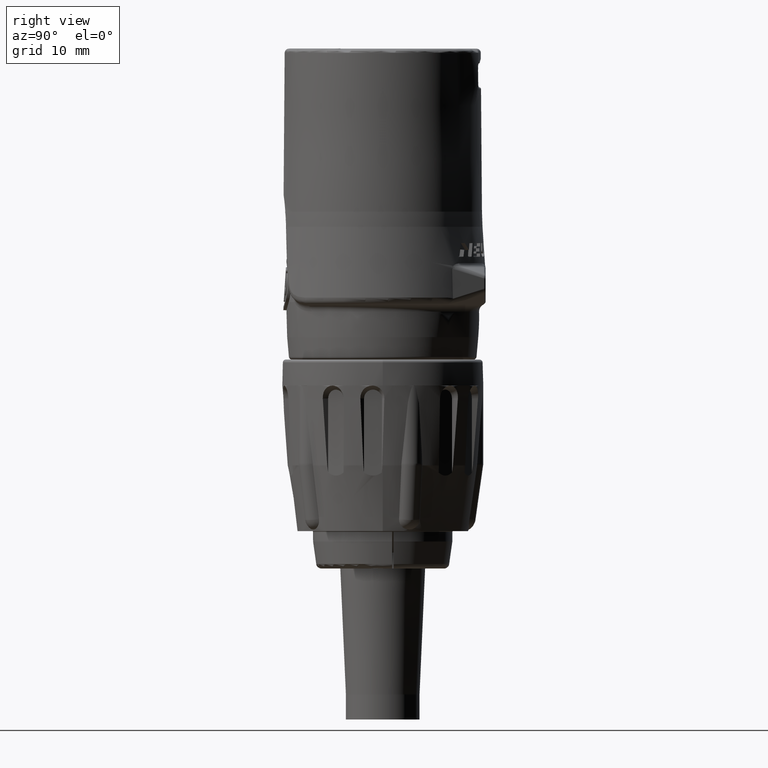
[diagram: clean part render]
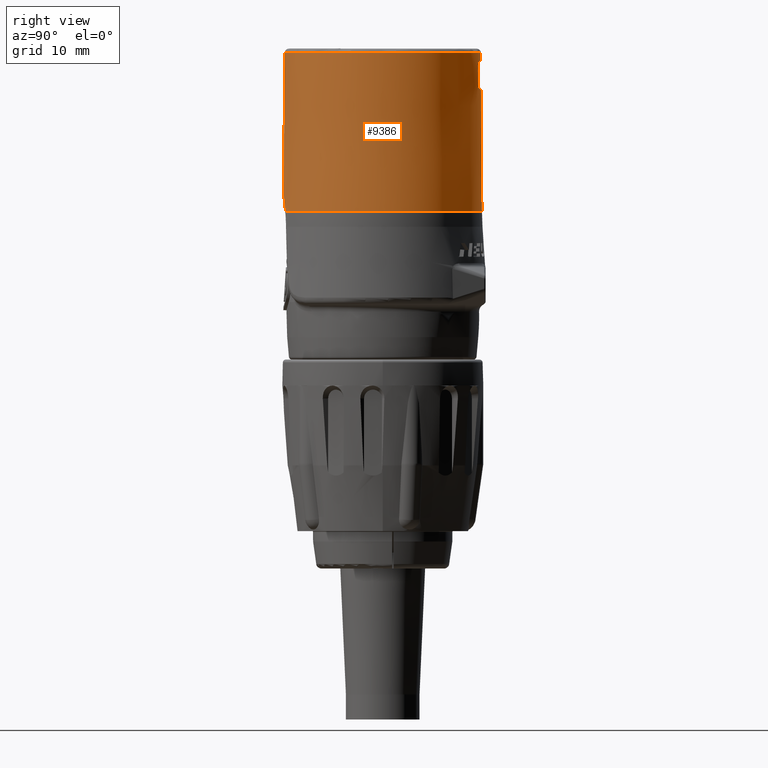
[diagram: same view with one face highlighted and labeled with its STEP entity id]
A machine part, right view. The second image highlights one B-rep face of the part: STEP entity #9386.
In plain terms, the highlighted conical surface has half-angle 0.437 deg.
Its self-contained STEP definition (entity closure, byte-faithful):
#1=CARTESIAN_POINT('',(1.893477147774E0,-9.354737866333E0,-7.708121573562E-1));
#2=CARTESIAN_POINT('',(1.840010879332E0,-9.364691513005E0,-6.589383458573E-1));
#3=CARTESIAN_POINT('',(1.732613962791E0,-9.383840837252E0,-4.489987730211E-1));
#4=CARTESIAN_POINT('',(1.571763490272E0,-9.410021084290E0,-1.771849352532E-1));
#5=CARTESIAN_POINT('',(1.408591526255E0,-9.434034154197E0,5.764743483160E-2));
#6=CARTESIAN_POINT('',(1.241454190438E0,-9.455958800716E0,2.585589270765E-1));
#7=CARTESIAN_POINT('',(1.070445893994E0,-9.475565907758E0,4.268960512900E-1));
#8=CARTESIAN_POINT('',(8.980821717949E-1,-9.492407262663E0,5.628282518351E-1));
#9=CARTESIAN_POINT('',(7.278155660031E-1,-9.506154446612E0,6.680935177956E-1));
#10=CARTESIAN_POINT('',(5.611889864861E-1,-9.516817402424E0,7.463196689173E-1));
#11=CARTESIAN_POINT('',(3.967669897794E-1,-9.524690844597E0,8.024715669754E-1));
#12=CARTESIAN_POINT('',(2.156300855397E-1,-9.530377630007E0,8.421601616838E-1));
#13=CARTESIAN_POINT('',(7.473755445788E-2,-9.532057701226E0,8.537458661578E-1));
#14=CARTESIAN_POINT('',(-4.543181709230E-9,-9.532059863128E0,
8.537459576222E-1));
#16=CARTESIAN_POINT('',(0.E0,0.E0,1.450304869193E1));
#17=DIRECTION('',(0.E0,0.E0,1.E0));
#18=DIRECTION('',(0.E0,-1.E0,0.E0));
#19=AXIS2_PLACEMENT_3D('',#16,#17,#18);
#21=CARTESIAN_POINT('',(1.094235813071E-12,9.432344260641E0,1.393643300390E1));
#22=CARTESIAN_POINT('',(4.748554453155E-1,9.432344260641E0,1.393643300390E1));
#23=CARTESIAN_POINT('',(9.175376978175E-1,9.398135068145E0,1.381125231873E1));
#24=CARTESIAN_POINT('',(1.337398621795E0,9.339660356680E0,1.359727753848E1));
#26=CARTESIAN_POINT('',(1.358752026420E0,9.336649209608E0,1.358728264868E1));
#27=CARTESIAN_POINT('',(1.356310429132E0,9.336996434243E0,1.358833406538E1));
#28=CARTESIAN_POINT('',(1.351484329412E0,9.337688200019E0,1.359050058380E1));
#29=CARTESIAN_POINT('',(1.344350560816E0,9.338689131461E0,1.359380660247E1));
#30=CARTESIAN_POINT('',(1.339698981698E0,9.339339981827E0,1.359610520027E1));
#31=CARTESIAN_POINT('',(1.337398621795E0,9.339660356680E0,1.359727753848E1));
#33=CARTESIAN_POINT('',(2.247621928830E0,9.167582280119E0,1.305152433291E1));
#34=CARTESIAN_POINT('',(2.247614471101E0,9.167186503668E0,1.310159044353E1));
#35=CARTESIAN_POINT('',(2.235230167038E0,9.169483167388E0,1.319871867844E1));
#36=CARTESIAN_POINT('',(2.180025360617E0,9.181738205964E0,1.333902573669E1));
#37=CARTESIAN_POINT('',(2.089759613155E0,9.201848848812E0,1.346306331239E1));
#38=CARTESIAN_POINT('',(1.968565002113E0,9.227886842445E0,1.356264976454E1));
#39=CARTESIAN_POINT('',(1.823732007161E0,9.257179366898E0,1.362936076083E1));
#40=CARTESIAN_POINT('',(1.665764537580E0,9.286734255271E0,1.365761927874E1));
#41=CARTESIAN_POINT('',(1.505260258780E0,9.314157654993E0,1.364474435279E1));
#42=CARTESIAN_POINT('',(1.406656566328E0,9.329498929256E0,1.361092436998E1));
#43=CARTESIAN_POINT('',(1.358752026420E0,9.336649209608E0,1.358728264868E1));
#45=DIRECTION('',(3.971374300695E-5,-7.854830983089E-3,9.999691495506E-1));
#46=VECTOR('',#45,1.450044756993E0);
#47=CARTESIAN_POINT('',(2.247564342126E0,9.178972136604E0,1.160152431045E1));
#48=LINE('',#47,#46);
#49=CARTESIAN_POINT('',(1.634575873209E0,9.312345045965E0,1.100152434270E1));
#50=CARTESIAN_POINT('',(1.673353076480E0,9.305537547465E0,1.100152605999E1));
#51=CARTESIAN_POINT('',(1.751784327030E0,9.291221652104E0,1.100862464078E1));
#52=CARTESIAN_POINT('',(1.873409772733E0,9.267206918990E0,1.104386383147E1));
#53=CARTESIAN_POINT('',(1.994823780804E0,9.241291399535E0,1.110948770756E1));
#54=CARTESIAN_POINT('',(2.101923836801E0,9.216698290117E0,1.120454181735E1));
#55=CARTESIAN_POINT('',(2.185184965722E0,9.196280734785E0,1.132481167706E1));
#56=CARTESIAN_POINT('',(2.236176176678E0,9.182884635872E0,1.146035883484E1));
#57=CARTESIAN_POINT('',(2.247571314755E0,9.179349878723E0,1.155358510060E1));
#58=CARTESIAN_POINT('',(2.247564342126E0,9.178972136604E0,1.160152431045E1));
#60=CARTESIAN_POINT('',(0.E0,0.E0,1.100152434543E1));
#61=DIRECTION('',(0.E0,0.E0,-1.E0));
#62=DIRECTION('',(0.E0,1.E0,0.E0));
#63=AXIS2_PLACEMENT_3D('',#60,#61,#62);
#65=CARTESIAN_POINT('',(0.E0,0.E0,-7.708121570020E-1));
#66=DIRECTION('',(0.E0,0.E0,-1.E0));
#67=DIRECTION('',(0.E0,1.E0,0.E0));
#68=AXIS2_PLACEMENT_3D('',#65,#66,#67);
#442=CARTESIAN_POINT('',(1.893477147774E0,-9.354737866333E0,
-7.708121573562E-1));
#496=DIRECTION('',(2.607481644684E-13,-7.621729833806E-3,9.999709541953E-1));
#497=VECTOR('',#496,1.177267844989E1);
#498=CARTESIAN_POINT('',(-3.076125233915E-12,9.544442165831E0,
-7.708121570017E-1));
#499=LINE('',#498,#497);
#544=DIRECTION('',(1.349663000609E-12,-7.621729833783E-3,9.999709541953E-1));
#545=VECTOR('',#544,5.666321463181E-1);
#546=CARTESIAN_POINT('',(3.655153570373E-13,9.432344260641E0,1.393643300390E1));
#547=LINE('',#546,#545);
#553=DIRECTION('',(3.327583293514E-10,7.621729833836E-3,9.999709541953E-1));
#554=VECTOR('',#553,1.364969920081E1);
#555=CARTESIAN_POINT('',(-4.543181709230E-9,-9.532059863128E0,
8.537459576222E-1));
#556=LINE('',#555,#554);
#7528=CARTESIAN_POINT('',(1.358752026420E0,9.336649209608E0,1.358728264868E1));
#8215=VERTEX_POINT('',#7528);
#8216=VERTEX_POINT('',#31);
#8221=VERTEX_POINT('',#33);
#8222=CARTESIAN_POINT('',(2.247564342126E0,9.178972136604E0,1.160152431045E1));
#8223=VERTEX_POINT('',#8222);
#8225=VERTEX_POINT('',#49);
#8227=CARTESIAN_POINT('',(0.E0,9.454713991270E0,1.100152434543E1));
#8228=VERTEX_POINT('',#8227);
#8238=VERTEX_POINT('',#21);
#8239=CARTESIAN_POINT('',(0.E0,-9.428025543507E0,1.450304869193E1));
#8240=CARTESIAN_POINT('',(0.E0,9.428025543507E0,1.450304869193E1));
#8241=VERTEX_POINT('',#8239);
#8242=VERTEX_POINT('',#8240);
#8314=VERTEX_POINT('',#442);
#8316=VERTEX_POINT('',#14);
#9007=CARTESIAN_POINT('',(0.E0,9.544442165831E0,-7.708121570020E-1));
#9008=VERTEX_POINT('',#9007);
#9355=CARTESIAN_POINT('',(0.E0,0.E0,6.866118267466E0));
#9356=DIRECTION('',(0.E0,0.E0,-1.E0));
#9357=DIRECTION('',(0.E0,-1.E0,0.E0));
#9358=AXIS2_PLACEMENT_3D('',#9355,#9356,#9357);
#9359=CONICAL_SURFACE('',#9358,9.486233854669E0,4.366971801479E-1);
#9361=ORIENTED_EDGE('',*,*,#9360,.T.);
#9363=ORIENTED_EDGE('',*,*,#9362,.T.);
#9365=ORIENTED_EDGE('',*,*,#9364,.T.);
#9367=ORIENTED_EDGE('',*,*,#9366,.F.);
#9369=ORIENTED_EDGE('',*,*,#9368,.T.);
#9371=ORIENTED_EDGE('',*,*,#9370,.F.);
#9373=ORIENTED_EDGE('',*,*,#9372,.F.);
#9375=ORIENTED_EDGE('',*,*,#9374,.F.);
#9377=ORIENTED_EDGE('',*,*,#9376,.F.);
#9379=ORIENTED_EDGE('',*,*,#9378,.F.);
#9381=ORIENTED_EDGE('',*,*,#9380,.F.);
#9383=ORIENTED_EDGE('',*,*,#9382,.T.);
#9384=EDGE_LOOP('',(#9361,#9363,#9365,#9367,#9369,#9371,#9373,#9375,#9377,#9379,
#9381,#9383));
#9385=FACE_OUTER_BOUND('',#9384,.F.);
#9386=ADVANCED_FACE('',(#9385),#9359,.T.);
#15=B_SPLINE_CURVE_WITH_KNOTS('',3,(#1,#2,#3,#4,#5,#6,#7,#8,#9,#10,#11,#12,#13,
#14),.UNSPECIFIED.,.F.,.F.,(4,1,1,1,1,1,1,1,1,1,1,4),(0.E0,9.090909090909E-2,
1.818181818182E-1,2.727272727273E-1,3.636363636364E-1,4.545454545455E-1,
5.454545454545E-1,6.363636363636E-1,7.272727272727E-1,8.181818181818E-1,
9.090909090909E-1,1.E0),.UNSPECIFIED.);
#20=CIRCLE('',#19,9.428025543507E0);
#25=B_SPLINE_CURVE_WITH_KNOTS('',3,(#21,#22,#23,#24),.UNSPECIFIED.,.F.,.F.,(4,
4),(0.E0,1.E0),.UNSPECIFIED.);
#32=B_SPLINE_CURVE_WITH_KNOTS('',3,(#26,#27,#28,#29,#30,#31),.UNSPECIFIED.,.F.,
.F.,(4,1,1,4),(0.E0,3.333333333333E-1,6.666666666667E-1,1.E0),.UNSPECIFIED.);
#44=B_SPLINE_CURVE_WITH_KNOTS('',3,(#33,#34,#35,#36,#37,#38,#39,#40,#41,#42,
#43),.UNSPECIFIED.,.F.,.F.,(4,1,1,1,1,1,1,1,4),(0.E0,1.25E-1,2.5E-1,3.75E-1,
5.E-1,6.25E-1,7.5E-1,8.75E-1,1.E0),.UNSPECIFIED.);
#59=B_SPLINE_CURVE_WITH_KNOTS('',3,(#49,#50,#51,#52,#53,#54,#55,#56,#57,#58),
.UNSPECIFIED.,.F.,.F.,(4,1,1,1,1,1,1,4),(0.E0,1.428571428571E-1,
2.857142857143E-1,4.285714285714E-1,5.714285714286E-1,7.142857142857E-1,
8.571428571429E-1,1.E0),.UNSPECIFIED.);
#64=CIRCLE('',#63,9.454713991270E0);
#69=CIRCLE('',#68,9.544442165831E0);
#9360=EDGE_CURVE('',#8314,#8316,#15,.T.);
#9362=EDGE_CURVE('',#8316,#8241,#556,.T.);
#9364=EDGE_CURVE('',#8241,#8242,#20,.T.);
#9366=EDGE_CURVE('',#8238,#8242,#547,.T.);
#9368=EDGE_CURVE('',#8238,#8216,#25,.T.);
#9370=EDGE_CURVE('',#8215,#8216,#32,.T.);
#9372=EDGE_CURVE('',#8221,#8215,#44,.T.);
#9374=EDGE_CURVE('',#8223,#8221,#48,.T.);
#9376=EDGE_CURVE('',#8225,#8223,#59,.T.);
#9378=EDGE_CURVE('',#8228,#8225,#64,.T.);
#9380=EDGE_CURVE('',#9008,#8228,#499,.T.);
#9382=EDGE_CURVE('',#9008,#8314,#69,.T.);